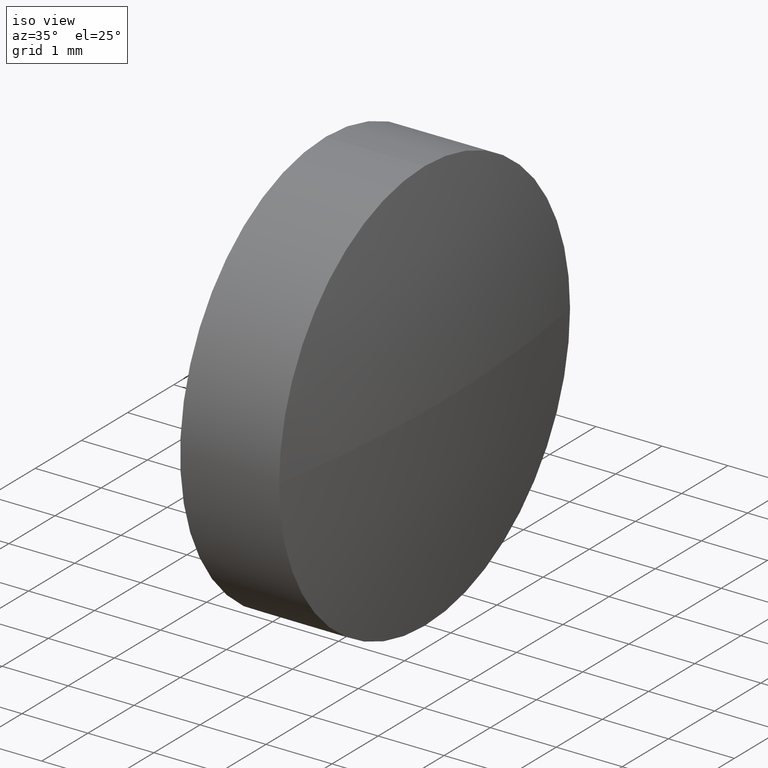
[diagram: clean part render]
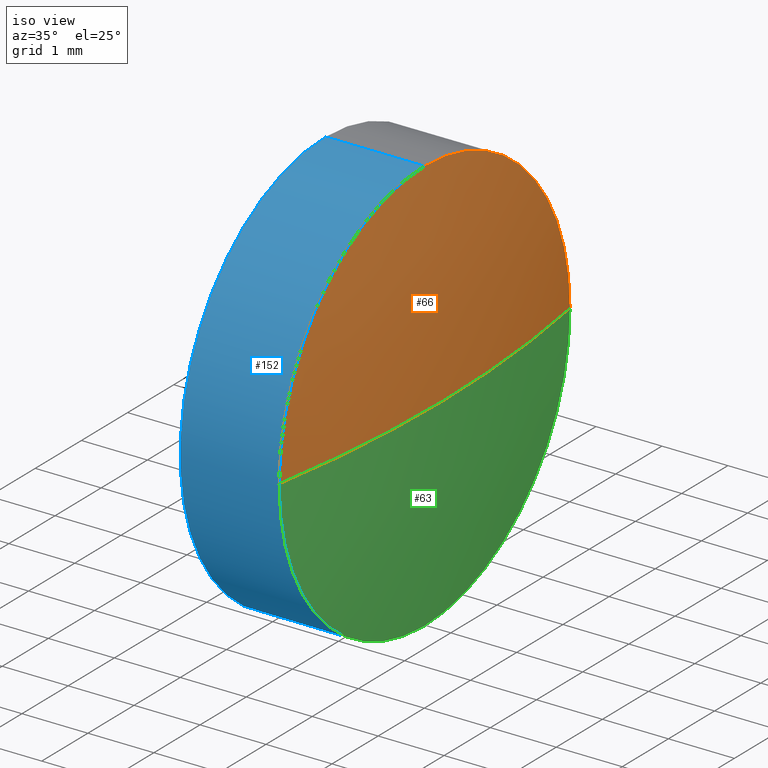
[diagram: same view with three faces highlighted in distinct colors, each labeled with its STEP entity id]
A machine part, iso view with three faces highlighted in distinct colors.
Their STEP definitions:

[orange] entity #66 — the highlighted spherical surface has radius 18.51 mm.
#6 = AXIS2_PLACEMENT_3D ( 'NONE', #137, #159, #149 ) ;
#7 = DIRECTION ( 'NONE',  ( 0.0000000000000000000, 0.0000000000000000000, 1.000000000000000000 ) ) ;
#9 = ORIENTED_EDGE ( 'NONE', *, *, #172, .F. ) ;
#11 = EDGE_CURVE ( 'NONE', #151, #38, #21, .T. ) ;
#16 = DIRECTION ( 'NONE',  ( 0.0000000000000000000, -1.000000000000000000, 0.0000000000000000000 ) ) ;
#21 = CIRCLE ( 'NONE', #115, 18.51000000000007600 ) ;
#23 = VERTEX_POINT ( 'NONE', #55 ) ;
#32 = CARTESIAN_POINT ( 'NONE',  ( 427.5444064456223100, 32.74152775011280200, 0.0000000000000000000 ) ) ;
#35 = FACE_OUTER_BOUND ( 'NONE', #157, .T. ) ;
#38 = VERTEX_POINT ( 'NONE', #134 ) ;
#42 = ORIENTED_EDGE ( 'NONE', *, *, #103, .F. ) ;
#52 = VERTEX_POINT ( 'NONE', #101 ) ;
#55 = CARTESIAN_POINT ( 'NONE',  ( 445.7844064456223800, 32.74152775011270900, 3.149999999999999900 ) ) ;
#57 = ORIENTED_EDGE ( 'NONE', *, *, #90, .F. ) ;
#66 = ADVANCED_FACE ( 'NONE', ( #35 ), #158, .T. ) ;
#85 = DIRECTION ( 'NONE',  ( 0.0000000000000000000, 0.0000000000000000000, 1.000000000000000000 ) ) ;
#88 = ORIENTED_EDGE ( 'NONE', *, *, #11, .T. ) ;
#90 = EDGE_CURVE ( 'NONE', #52, #23, #113, .T. ) ;
#93 = DIRECTION ( 'NONE',  ( -1.000000000000000000, -0.0000000000000000000, -0.0000000000000000000 ) ) ;
#101 = CARTESIAN_POINT ( 'NONE',  ( 445.7844064456223800, 29.59152775011279200, 0.0000000000000000000 ) ) ;
#103 = EDGE_CURVE ( 'NONE', #151, #52, #126, .T. ) ;
#107 = AXIS2_PLACEMENT_3D ( 'NONE', #143, #85, #16 ) ;
#111 = CARTESIAN_POINT ( 'NONE',  ( 445.7844064456223800, 32.74152775011270900, 0.0000000000000000000 ) ) ;
#113 = CIRCLE ( 'NONE', #184, 3.149999999999999900 ) ;
#115 = AXIS2_PLACEMENT_3D ( 'NONE', #32, #171, #119 ) ;
#119 = DIRECTION ( 'NONE',  ( 0.0000000000000000000, -1.000000000000000000, -1.224646799147353200E-016 ) ) ;
#125 = DIRECTION ( 'NONE',  ( -1.000000000000000000, -0.0000000000000000000, -0.0000000000000000000 ) ) ;
#126 = CIRCLE ( 'NONE', #6, 18.51000000000008300 ) ;
#129 = CIRCLE ( 'NONE', #174, 3.149999999999999900 ) ;
#134 = CARTESIAN_POINT ( 'NONE',  ( 445.7844064456223800, 35.89152775011271500, 3.857637417314053200E-016 ) ) ;
#137 = CARTESIAN_POINT ( 'NONE',  ( 427.5444064456223100, 32.74152775011280200, 0.0000000000000000000 ) ) ;
#143 = CARTESIAN_POINT ( 'NONE',  ( 427.5444064456223100, 32.74152775011280200, 0.0000000000000000000 ) ) ;
#149 = DIRECTION ( 'NONE',  ( -1.000000000000000000, 0.0000000000000000000, 0.0000000000000000000 ) ) ;
#150 = CARTESIAN_POINT ( 'NONE',  ( 446.0544064456223600, 32.74152775011280200, 0.0000000000000000000 ) ) ;
#151 = VERTEX_POINT ( 'NONE', #150 ) ;
#157 = EDGE_LOOP ( 'NONE', ( #42, #88, #9, #57 ) ) ;
#158 = SPHERICAL_SURFACE ( 'NONE', #107, 18.51000000000007600 ) ;
#159 = DIRECTION ( 'NONE',  ( 0.0000000000000000000, 0.0000000000000000000, -1.000000000000000000 ) ) ;
#171 = DIRECTION ( 'NONE',  ( 0.0000000000000000000, -1.224646799147353200E-016, 1.000000000000000000 ) ) ;
#172 = EDGE_CURVE ( 'NONE', #23, #38, #129, .T. ) ;
#174 = AXIS2_PLACEMENT_3D ( 'NONE', #176, #93, #182 ) ;
#176 = CARTESIAN_POINT ( 'NONE',  ( 445.7844064456223800, 32.74152775011270900, 0.0000000000000000000 ) ) ;
#182 = DIRECTION ( 'NONE',  ( 0.0000000000000000000, 0.0000000000000000000, 1.000000000000000000 ) ) ;
#184 = AXIS2_PLACEMENT_3D ( 'NONE', #111, #125, #7 ) ;

[blue] entity #152 — the highlighted cylindrical surface (partial cylindrical patch) has radius 3.15 mm, axis along (-1, -0, -0).
#7 = DIRECTION ( 'NONE',  ( 0.0000000000000000000, 0.0000000000000000000, 1.000000000000000000 ) ) ;
#8 = CARTESIAN_POINT ( 'NONE',  ( 443.4237683568735000, 32.74152775011270900, 0.0000000000000000000 ) ) ;
#10 = ORIENTED_EDGE ( 'NONE', *, *, #96, .F. ) ;
#12 = DIRECTION ( 'NONE',  ( -1.000000000000000000, -0.0000000000000000000, -0.0000000000000000000 ) ) ;
#18 = FACE_OUTER_BOUND ( 'NONE', #166, .T. ) ;
#23 = VERTEX_POINT ( 'NONE', #55 ) ;
#24 = DIRECTION ( 'NONE',  ( 0.0000000000000000000, 0.0000000000000000000, 1.000000000000000000 ) ) ;
#43 = VECTOR ( 'NONE', #74, 1000.000000000000000 ) ;
#46 = ORIENTED_EDGE ( 'NONE', *, *, #65, .T. ) ;
#48 = LINE ( 'NONE', #161, #43 ) ;
#49 = CARTESIAN_POINT ( 'NONE',  ( 445.7844064456223800, 32.74152775011270900, -3.149999999999999900 ) ) ;
#52 = VERTEX_POINT ( 'NONE', #101 ) ;
#55 = CARTESIAN_POINT ( 'NONE',  ( 445.7844064456223800, 32.74152775011270900, 3.149999999999999900 ) ) ;
#56 = CIRCLE ( 'NONE', #121, 3.149999999999999900 ) ;
#64 = DIRECTION ( 'NONE',  ( 0.0000000000000000000, 0.0000000000000000000, 1.000000000000000000 ) ) ;
#65 = EDGE_CURVE ( 'NONE', #23, #133, #169, .T. ) ;
#69 = DIRECTION ( 'NONE',  ( -1.000000000000000000, -0.0000000000000000000, -0.0000000000000000000 ) ) ;
#72 = ORIENTED_EDGE ( 'NONE', *, *, #75, .F. ) ;
#73 = VECTOR ( 'NONE', #69, 1000.000000000000000 ) ;
#74 = DIRECTION ( 'NONE',  ( -1.000000000000000000, -0.0000000000000000000, -0.0000000000000000000 ) ) ;
#75 = EDGE_CURVE ( 'NONE', #86, #133, #56, .T. ) ;
#76 = AXIS2_PLACEMENT_3D ( 'NONE', #8, #112, #24 ) ;
#77 = CIRCLE ( 'NONE', #94, 3.149999999999999900 ) ;
#79 = CARTESIAN_POINT ( 'NONE',  ( 445.7844064456223800, 32.74152775011270900, 0.0000000000000000000 ) ) ;
#86 = VERTEX_POINT ( 'NONE', #186 ) ;
#90 = EDGE_CURVE ( 'NONE', #52, #23, #113, .T. ) ;
#94 = AXIS2_PLACEMENT_3D ( 'NONE', #79, #12, #64 ) ;
#96 = EDGE_CURVE ( 'NONE', #175, #86, #48, .T. ) ;
#101 = CARTESIAN_POINT ( 'NONE',  ( 445.7844064456223800, 29.59152775011279200, 0.0000000000000000000 ) ) ;
#110 = DIRECTION ( 'NONE',  ( 0.0000000000000000000, 0.0000000000000000000, 1.000000000000000000 ) ) ;
#111 = CARTESIAN_POINT ( 'NONE',  ( 445.7844064456223800, 32.74152775011270900, 0.0000000000000000000 ) ) ;
#112 = DIRECTION ( 'NONE',  ( -1.000000000000000000, -0.0000000000000000000, -0.0000000000000000000 ) ) ;
#113 = CIRCLE ( 'NONE', #184, 3.149999999999999900 ) ;
#121 = AXIS2_PLACEMENT_3D ( 'NONE', #165, #128, #110 ) ;
#125 = DIRECTION ( 'NONE',  ( -1.000000000000000000, -0.0000000000000000000, -0.0000000000000000000 ) ) ;
#128 = DIRECTION ( 'NONE',  ( -1.000000000000000000, -0.0000000000000000000, -0.0000000000000000000 ) ) ;
#133 = VERTEX_POINT ( 'NONE', #139 ) ;
#138 = ORIENTED_EDGE ( 'NONE', *, *, #163, .T. ) ;
#139 = CARTESIAN_POINT ( 'NONE',  ( 444.2844064456223800, 32.74152775011270900, 3.149999999999999900 ) ) ;
#146 = CARTESIAN_POINT ( 'NONE',  ( 443.4237683568735000, 32.74152775011270900, 3.149999999999999900 ) ) ;
#152 = ADVANCED_FACE ( 'NONE', ( #18 ), #160, .T. ) ;
#160 = CYLINDRICAL_SURFACE ( 'NONE', #76, 3.149999999999999900 ) ;
#161 = CARTESIAN_POINT ( 'NONE',  ( 443.4237683568735000, 32.74152775011270900, -3.149999999999999900 ) ) ;
#163 = EDGE_CURVE ( 'NONE', #175, #52, #77, .T. ) ;
#165 = CARTESIAN_POINT ( 'NONE',  ( 444.2844064456223800, 32.74152775011270900, 0.0000000000000000000 ) ) ;
#166 = EDGE_LOOP ( 'NONE', ( #10, #138, #173, #46, #72 ) ) ;
#169 = LINE ( 'NONE', #146, #73 ) ;
#173 = ORIENTED_EDGE ( 'NONE', *, *, #90, .T. ) ;
#175 = VERTEX_POINT ( 'NONE', #49 ) ;
#184 = AXIS2_PLACEMENT_3D ( 'NONE', #111, #125, #7 ) ;
#186 = CARTESIAN_POINT ( 'NONE',  ( 444.2844064456223800, 32.74152775011270900, -3.149999999999999900 ) ) ;

[green] entity #63 — the highlighted spherical surface has radius 18.51 mm.
#6 = AXIS2_PLACEMENT_3D ( 'NONE', #137, #159, #149 ) ;
#11 = EDGE_CURVE ( 'NONE', #151, #38, #21, .T. ) ;
#12 = DIRECTION ( 'NONE',  ( -1.000000000000000000, -0.0000000000000000000, -0.0000000000000000000 ) ) ;
#17 = ORIENTED_EDGE ( 'NONE', *, *, #103, .T. ) ;
#21 = CIRCLE ( 'NONE', #115, 18.51000000000007600 ) ;
#26 = AXIS2_PLACEMENT_3D ( 'NONE', #30, #100, #145 ) ;
#30 = CARTESIAN_POINT ( 'NONE',  ( 427.5444064456223100, 32.74152775011280200, 0.0000000000000000000 ) ) ;
#32 = CARTESIAN_POINT ( 'NONE',  ( 427.5444064456223100, 32.74152775011280200, 0.0000000000000000000 ) ) ;
#38 = VERTEX_POINT ( 'NONE', #134 ) ;
#39 = CARTESIAN_POINT ( 'NONE',  ( 445.7844064456223800, 32.74152775011270900, 0.0000000000000000000 ) ) ;
#49 = CARTESIAN_POINT ( 'NONE',  ( 445.7844064456223800, 32.74152775011270900, -3.149999999999999900 ) ) ;
#51 = DIRECTION ( 'NONE',  ( -1.000000000000000000, -0.0000000000000000000, -0.0000000000000000000 ) ) ;
#52 = VERTEX_POINT ( 'NONE', #101 ) ;
#54 = DIRECTION ( 'NONE',  ( 0.0000000000000000000, 0.0000000000000000000, 1.000000000000000000 ) ) ;
#61 = EDGE_LOOP ( 'NONE', ( #180, #17, #104, #123 ) ) ;
#63 = ADVANCED_FACE ( 'NONE', ( #82 ), #140, .T. ) ;
#64 = DIRECTION ( 'NONE',  ( 0.0000000000000000000, 0.0000000000000000000, 1.000000000000000000 ) ) ;
#77 = CIRCLE ( 'NONE', #94, 3.149999999999999900 ) ;
#79 = CARTESIAN_POINT ( 'NONE',  ( 445.7844064456223800, 32.74152775011270900, 0.0000000000000000000 ) ) ;
#82 = FACE_OUTER_BOUND ( 'NONE', #61, .T. ) ;
#84 = EDGE_CURVE ( 'NONE', #38, #175, #102, .T. ) ;
#94 = AXIS2_PLACEMENT_3D ( 'NONE', #79, #12, #64 ) ;
#100 = DIRECTION ( 'NONE',  ( 0.0000000000000000000, 0.0000000000000000000, 1.000000000000000000 ) ) ;
#101 = CARTESIAN_POINT ( 'NONE',  ( 445.7844064456223800, 29.59152775011279200, 0.0000000000000000000 ) ) ;
#102 = CIRCLE ( 'NONE', #130, 3.149999999999999900 ) ;
#103 = EDGE_CURVE ( 'NONE', #151, #52, #126, .T. ) ;
#104 = ORIENTED_EDGE ( 'NONE', *, *, #163, .F. ) ;
#115 = AXIS2_PLACEMENT_3D ( 'NONE', #32, #171, #119 ) ;
#119 = DIRECTION ( 'NONE',  ( 0.0000000000000000000, -1.000000000000000000, -1.224646799147353200E-016 ) ) ;
#123 = ORIENTED_EDGE ( 'NONE', *, *, #84, .F. ) ;
#126 = CIRCLE ( 'NONE', #6, 18.51000000000008300 ) ;
#130 = AXIS2_PLACEMENT_3D ( 'NONE', #39, #51, #54 ) ;
#134 = CARTESIAN_POINT ( 'NONE',  ( 445.7844064456223800, 35.89152775011271500, 3.857637417314053200E-016 ) ) ;
#137 = CARTESIAN_POINT ( 'NONE',  ( 427.5444064456223100, 32.74152775011280200, 0.0000000000000000000 ) ) ;
#140 = SPHERICAL_SURFACE ( 'NONE', #26, 18.51000000000007600 ) ;
#145 = DIRECTION ( 'NONE',  ( 0.0000000000000000000, -1.000000000000000000, 0.0000000000000000000 ) ) ;
#149 = DIRECTION ( 'NONE',  ( -1.000000000000000000, 0.0000000000000000000, 0.0000000000000000000 ) ) ;
#150 = CARTESIAN_POINT ( 'NONE',  ( 446.0544064456223600, 32.74152775011280200, 0.0000000000000000000 ) ) ;
#151 = VERTEX_POINT ( 'NONE', #150 ) ;
#159 = DIRECTION ( 'NONE',  ( 0.0000000000000000000, 0.0000000000000000000, -1.000000000000000000 ) ) ;
#163 = EDGE_CURVE ( 'NONE', #175, #52, #77, .T. ) ;
#171 = DIRECTION ( 'NONE',  ( 0.0000000000000000000, -1.224646799147353200E-016, 1.000000000000000000 ) ) ;
#175 = VERTEX_POINT ( 'NONE', #49 ) ;
#180 = ORIENTED_EDGE ( 'NONE', *, *, #11, .F. ) ;